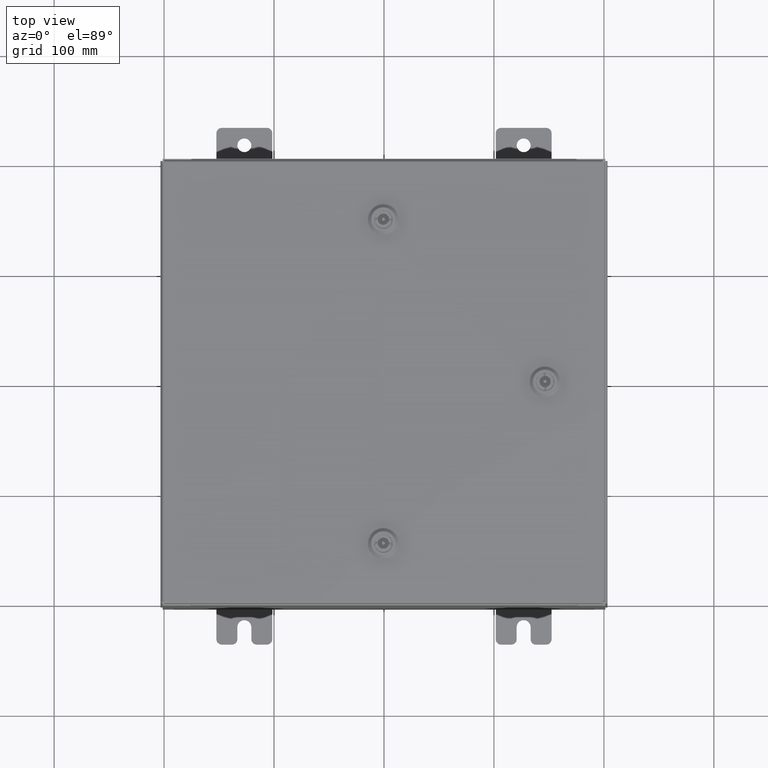
[diagram: clean part render]
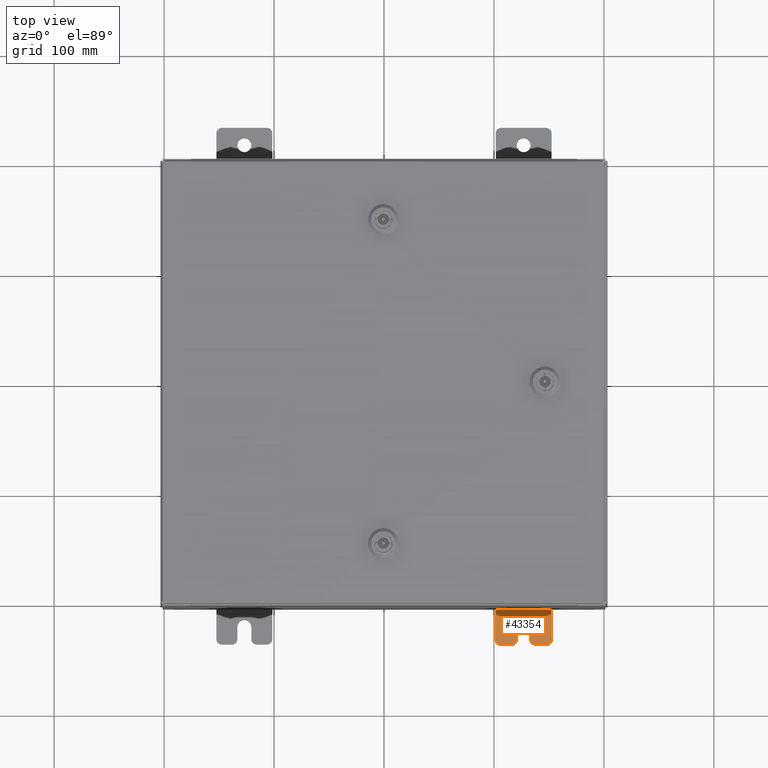
[diagram: same view with one face highlighted and labeled with its STEP entity id]
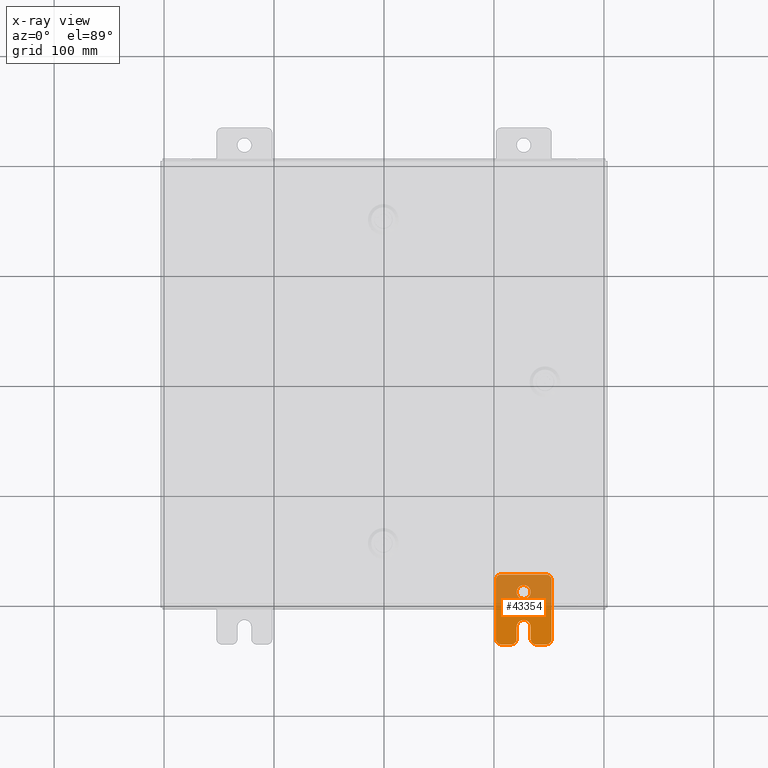
[diagram: x-ray of the same camera — body ghosted, the highlighted face saturated]
A machine part, top view. The second image highlights one B-rep face of the part: STEP entity #43354.
The next image is the same camera in x-ray: the body ghosted, the highlighted face saturated — about 50% of this face is hidden behind the body in this view.
In plain terms, the highlighted planar face has unit normal (0, 0, 1).
Its self-contained STEP definition (entity closure, byte-faithful):
#69 = AXIS2_PLACEMENT_3D ( 'NONE', #50986, #22064, #55833 ) ;
#488 = CARTESIAN_POINT ( 'NONE',  ( 0.0000000000000000000, 1.249999999999997300, 0.8099999999999935000 ) ) ;
#561 = VERTEX_POINT ( 'NONE', #43456 ) ;
#1962 = VECTOR ( 'NONE', #23746, 39.37007874015748100 ) ;
#2259 = VERTEX_POINT ( 'NONE', #15070 ) ;
#2380 = EDGE_CURVE ( 'NONE', #3396, #43586, #29416, .T. ) ;
#3319 = EDGE_CURVE ( 'NONE', #43951, #31294, #27841, .T. ) ;
#3396 = VERTEX_POINT ( 'NONE', #52796 ) ;
#4611 = CARTESIAN_POINT ( 'NONE',  ( 4.039428427013647300E-016, 0.6249999999999992200, -9.783840404509077400E-018 ) ) ;
#4751 = CARTESIAN_POINT ( 'NONE',  ( 0.0000000000000000000, -1.060000000000001600, 0.8099999999999978300 ) ) ;
#5589 = ORIENTED_EDGE ( 'NONE', *, *, #30302, .T. ) ;
#5919 = VERTEX_POINT ( 'NONE', #35141 ) ;
#6169 = CARTESIAN_POINT ( 'NONE',  ( 0.0000000000000000000, 1.059999999999993400, -1.000000000000010000 ) ) ;
#6552 = PLANE ( 'NONE',  #49453 ) ;
#6736 = CARTESIAN_POINT ( 'NONE',  ( 0.0000000000000000000, 1.249999999999994200, -1.000000000000010400 ) ) ;
#6760 = VERTEX_POINT ( 'NONE', #29267 ) ;
#7890 = ORIENTED_EDGE ( 'NONE', *, *, #54301, .T. ) ;
#9473 = DIRECTION ( 'NONE',  ( -5.163192708025533800E-017, 0.0000000000000000000, -1.000000000000000000 ) ) ;
#9565 = CIRCLE ( 'NONE', #24474, 0.1900000000000011100 ) ;
#9598 = DIRECTION ( 'NONE',  ( 0.0000000000000000000, 0.0000000000000000000, -1.000000000000000000 ) ) ;
#9755 = CIRCLE ( 'NONE', #50527, 0.2499999999999999200 ) ;
#10351 = VERTEX_POINT ( 'NONE', #56633 ) ;
#10383 = CIRCLE ( 'NONE', #69, 0.1900000000000011100 ) ;
#11316 = CARTESIAN_POINT ( 'NONE',  ( 0.0000000000000000000, -1.060000000000004100, -0.8100000000000050500 ) ) ;
#11966 = CARTESIAN_POINT ( 'NONE',  ( 4.039428427013647300E-016, 0.6249999999999992200, -9.783840404509077400E-018 ) ) ;
#12048 = DIRECTION ( 'NONE',  ( 1.000000000000000000, 0.0000000000000000000, -0.0000000000000000000 ) ) ;
#12201 = AXIS2_PLACEMENT_3D ( 'NONE', #11316, #45076, #16179 ) ;
#13020 = EDGE_CURVE ( 'NONE', #6760, #20109, #27171, .T. ) ;
#14214 = AXIS2_PLACEMENT_3D ( 'NONE', #40983, #12048, #45800 ) ;
#14227 = CARTESIAN_POINT ( 'NONE',  ( 0.0000000000000000000, -1.250000000000005600, -1.000000000000006200 ) ) ;
#14266 = CARTESIAN_POINT ( 'NONE',  ( 0.0000000000000000000, 1.059999999999996300, 0.8099999999999938400 ) ) ;
#14345 = VECTOR ( 'NONE', #16459, 39.37007874015748100 ) ;
#15070 = CARTESIAN_POINT ( 'NONE',  ( 0.0000000000000000000, -1.250000000000004700, -0.4400000000000002200 ) ) ;
#15416 = VERTEX_POINT ( 'NONE', #31999 ) ;
#15500 = CARTESIAN_POINT ( 'NONE',  ( 4.780733988912460100E-016, -0.6249999999999993300, 5.858939755051854500E-017 ) ) ;
#15955 = ORIENTED_EDGE ( 'NONE', *, *, #2380, .T. ) ;
#15958 = ORIENTED_EDGE ( 'NONE', *, *, #3319, .T. ) ;
#16151 = EDGE_CURVE ( 'NONE', #2259, #48536, #59451, .T. ) ;
#16179 = DIRECTION ( 'NONE',  ( 0.0000000000000000000, 0.0000000000000000000, -1.000000000000000000 ) ) ;
#16295 = CARTESIAN_POINT ( 'NONE',  ( 0.0000000000000000000, 1.249999999999997600, 0.9999999999999951200 ) ) ;
#16459 = DIRECTION ( 'NONE',  ( 0.0000000000000000000, 1.639108796198553600E-015, 1.000000000000000000 ) ) ;
#16808 = DIRECTION ( 'NONE',  ( -5.163192708025533800E-017, 0.0000000000000000000, -1.000000000000000000 ) ) ;
#17220 = EDGE_CURVE ( 'NONE', #31294, #3396, #9565, .T. ) ;
#17413 = EDGE_CURVE ( 'NONE', #48889, #20543, #27551, .T. ) ;
#17620 = EDGE_CURVE ( 'NONE', #56480, #5919, #47212, .T. ) ;
#17895 = CARTESIAN_POINT ( 'NONE',  ( 0.0000000000000000000, -1.250000000000003100, 0.4400000000000020000 ) ) ;
#19120 = DIRECTION ( 'NONE',  ( 0.0000000000000000000, 0.0000000000000000000, -1.000000000000000000 ) ) ;
#19609 = ORIENTED_EDGE ( 'NONE', *, *, #42058, .T. ) ;
#20109 = VERTEX_POINT ( 'NONE', #488 ) ;
#20297 = FACE_BOUND ( 'NONE', #34726, .T. ) ;
#20330 = DIRECTION ( 'NONE',  ( -6.523827964459551700E-016, -1.000000000000000000, 0.0000000000000000000 ) ) ;
#20543 = VERTEX_POINT ( 'NONE', #52087 ) ;
#21096 = DIRECTION ( 'NONE',  ( -0.0000000000000000000, 0.0000000000000000000, -1.000000000000000000 ) ) ;
#22064 = DIRECTION ( 'NONE',  ( 1.000000000000000000, 0.0000000000000000000, -0.0000000000000000000 ) ) ;
#22166 = DIRECTION ( 'NONE',  ( 0.0000000000000000000, -1.639108796198553600E-015, -1.000000000000000000 ) ) ;
#22995 = ORIENTED_EDGE ( 'NONE', *, *, #55774, .T. ) ;
#23680 = DIRECTION ( 'NONE',  ( 0.0000000000000000000, -1.000000000000000000, 1.639108796198558100E-015 ) ) ;
#23746 = DIRECTION ( 'NONE',  ( 6.556435184794182400E-016, 1.000000000000000000, 0.0000000000000000000 ) ) ;
#24474 = AXIS2_PLACEMENT_3D ( 'NONE', #4751, #38530, #9598 ) ;
#25331 = VERTEX_POINT ( 'NONE', #6169 ) ;
#26045 = CARTESIAN_POINT ( 'NONE',  ( 0.0000000000000000000, -1.060000000000002100, 0.4400000000000016700 ) ) ;
#26351 = VECTOR ( 'NONE', #23680, 39.37007874015748100 ) ;
#27171 = LINE ( 'NONE', #6736, #14345 ) ;
#27551 = CIRCLE ( 'NONE', #40734, 0.2499999999999999200 ) ;
#27578 = CARTESIAN_POINT ( 'NONE',  ( 0.0000000000000000000, -1.060000000000001200, 0.9999999999999988900 ) ) ;
#27599 = ORIENTED_EDGE ( 'NONE', *, *, #17220, .T. ) ;
#27841 = LINE ( 'NONE', #16295, #26351 ) ;
#29267 = CARTESIAN_POINT ( 'NONE',  ( 0.0000000000000000000, 1.249999999999994700, -0.8100000000000092700 ) ) ;
#29416 = LINE ( 'NONE', #50499, #52079 ) ;
#29608 = DIRECTION ( 'NONE',  ( -6.556435184794182400E-016, -1.000000000000000000, -1.639108796198545600E-016 ) ) ;
#30148 = AXIS2_PLACEMENT_3D ( 'NONE', #14266, #48039, #19120 ) ;
#30190 = ORIENTED_EDGE ( 'NONE', *, *, #16151, .T. ) ;
#30302 = EDGE_CURVE ( 'NONE', #43586, #15416, #57847, .T. ) ;
#30380 = ORIENTED_EDGE ( 'NONE', *, *, #54853, .T. ) ;
#30879 = DIRECTION ( 'NONE',  ( 0.0000000000000000000, 0.0000000000000000000, -1.000000000000000000 ) ) ;
#31294 = VERTEX_POINT ( 'NONE', #27578 ) ;
#31596 = EDGE_CURVE ( 'NONE', #15416, #561, #51745, .T. ) ;
#31999 = CARTESIAN_POINT ( 'NONE',  ( 1.928684683526972300E-016, -1.060000000000002100, 0.2500000000000005000 ) ) ;
#33111 = FACE_OUTER_BOUND ( 'NONE', #41299, .T. ) ;
#33370 = ORIENTED_EDGE ( 'NONE', *, *, #53158, .F. ) ;
#33406 = CIRCLE ( 'NONE', #30148, 0.1900000000000011100 ) ;
#34688 = CARTESIAN_POINT ( 'NONE',  ( 4.780733988912460100E-016, -0.6249999999999993300, -0.2499999999999993900 ) ) ;
#34726 = EDGE_LOOP ( 'NONE', ( #35047, #33370 ) ) ;
#35047 = ORIENTED_EDGE ( 'NONE', *, *, #17413, .F. ) ;
#35141 = CARTESIAN_POINT ( 'NONE',  ( 1.928684683526964400E-016, -1.060000000000003400, -0.2499999999999994400 ) ) ;
#35307 = VECTOR ( 'NONE', #22166, 39.37007874015748100 ) ;
#35404 = ORIENTED_EDGE ( 'NONE', *, *, #46981, .T. ) ;
#35455 = CARTESIAN_POINT ( 'NONE',  ( 0.0000000000000000000, 0.0000000000000000000, 0.0000000000000000000 ) ) ;
#36739 = CARTESIAN_POINT ( 'NONE',  ( 0.0000000000000000000, -1.250000000000002200, 0.9999999999999992200 ) ) ;
#36788 = CARTESIAN_POINT ( 'NONE',  ( 0.0000000000000000000, 1.059999999999996500, 0.9999999999999953400 ) ) ;
#36856 = EDGE_CURVE ( 'NONE', #20109, #43951, #33406, .T. ) ;
#38413 = DIRECTION ( 'NONE',  ( 1.000000000000000000, -0.0000000000000000000, -5.163192708025532000E-017 ) ) ;
#38530 = DIRECTION ( 'NONE',  ( 1.000000000000000000, 0.0000000000000000000, -0.0000000000000000000 ) ) ;
#40708 = CIRCLE ( 'NONE', #50177, 0.2499999999999999200 ) ;
#40734 = AXIS2_PLACEMENT_3D ( 'NONE', #4611, #38413, #9473 ) ;
#40983 = CARTESIAN_POINT ( 'NONE',  ( 0.0000000000000000000, 1.059999999999993600, -0.8100000000000089400 ) ) ;
#41299 = EDGE_LOOP ( 'NONE', ( #15958, #27599, #15955, #5589, #60680, #7890, #56713, #22995, #30190, #30380, #35404, #19609, #57966, #57517 ) ) ;
#41443 = CIRCLE ( 'NONE', #12201, 0.1900000000000011100 ) ;
#41595 = CARTESIAN_POINT ( 'NONE',  ( 0.0000000000000000000, -1.250000000000005300, -0.8100000000000047200 ) ) ;
#42058 = EDGE_CURVE ( 'NONE', #25331, #6760, #42309, .T. ) ;
#42309 = CIRCLE ( 'NONE', #14214, 0.1900000000000011100 ) ;
#43354 = ADVANCED_FACE ( 'NONE', ( #20297, #33111 ), #6552, .T. ) ;
#43456 = CARTESIAN_POINT ( 'NONE',  ( 0.0000000000000000000, -0.6249999999999992200, 0.2500000000000005000 ) ) ;
#43586 = VERTEX_POINT ( 'NONE', #17895 ) ;
#43951 = VERTEX_POINT ( 'NONE', #36788 ) ;
#43963 = CARTESIAN_POINT ( 'NONE',  ( 3.910348609313009100E-016, 0.6249999999999992200, -0.2499999999999999200 ) ) ;
#45076 = DIRECTION ( 'NONE',  ( 1.000000000000000000, 0.0000000000000000000, -0.0000000000000000000 ) ) ;
#45642 = DIRECTION ( 'NONE',  ( 0.0000000000000000000, -1.639108796198553600E-015, -1.000000000000000000 ) ) ;
#45723 = DIRECTION ( 'NONE',  ( 1.000000000000000000, -0.0000000000000000000, -5.163192708025532000E-017 ) ) ;
#45800 = DIRECTION ( 'NONE',  ( 0.0000000000000000000, 0.0000000000000000000, -1.000000000000000000 ) ) ;
#46981 = EDGE_CURVE ( 'NONE', #10351, #25331, #55383, .T. ) ;
#47212 = LINE ( 'NONE', #34688, #60043 ) ;
#47313 = CARTESIAN_POINT ( 'NONE',  ( 4.780733988912460100E-016, -0.6249999999999993300, -0.2499999999999998600 ) ) ;
#47839 = CARTESIAN_POINT ( 'NONE',  ( 6.829619984160658000E-017, -1.250000000000003800, 0.2500000000000005000 ) ) ;
#48039 = DIRECTION ( 'NONE',  ( 1.000000000000000000, 0.0000000000000000000, -0.0000000000000000000 ) ) ;
#48536 = VERTEX_POINT ( 'NONE', #41595 ) ;
#48889 = VERTEX_POINT ( 'NONE', #43963 ) ;
#49255 = DIRECTION ( 'NONE',  ( -1.000000000000000000, 6.523827964459549700E-016, 5.163192708025532000E-017 ) ) ;
#49453 = AXIS2_PLACEMENT_3D ( 'NONE', #35455, #50023, #21096 ) ;
#50023 = DIRECTION ( 'NONE',  ( 1.000000000000000000, 0.0000000000000000000, -0.0000000000000000000 ) ) ;
#50177 = AXIS2_PLACEMENT_3D ( 'NONE', #15500, #49255, #20330 ) ;
#50499 = CARTESIAN_POINT ( 'NONE',  ( 0.0000000000000000000, -1.250000000000002200, 0.9999999999999992200 ) ) ;
#50527 = AXIS2_PLACEMENT_3D ( 'NONE', #11966, #45723, #16808 ) ;
#50621 = AXIS2_PLACEMENT_3D ( 'NONE', #26045, #59831, #30879 ) ;
#50986 = CARTESIAN_POINT ( 'NONE',  ( 0.0000000000000000000, -1.060000000000003400, -0.4400000000000005000 ) ) ;
#51745 = LINE ( 'NONE', #47839, #1962 ) ;
#52079 = VECTOR ( 'NONE', #45642, 39.37007874015748100 ) ;
#52087 = CARTESIAN_POINT ( 'NONE',  ( 4.168508244714285900E-016, 0.6249999999999992200, 0.2499999999999999200 ) ) ;
#52796 = CARTESIAN_POINT ( 'NONE',  ( 0.0000000000000000000, -1.250000000000002400, 0.8099999999999980500 ) ) ;
#52825 = DIRECTION ( 'NONE',  ( 0.0000000000000000000, 1.000000000000000000, -1.639108796198558100E-015 ) ) ;
#53158 = EDGE_CURVE ( 'NONE', #20543, #48889, #9755, .T. ) ;
#53843 = VECTOR ( 'NONE', #52825, 39.37007874015748100 ) ;
#54301 = EDGE_CURVE ( 'NONE', #561, #56480, #40708, .T. ) ;
#54853 = EDGE_CURVE ( 'NONE', #48536, #10351, #41443, .T. ) ;
#55383 = LINE ( 'NONE', #14227, #53843 ) ;
#55774 = EDGE_CURVE ( 'NONE', #5919, #2259, #10383, .T. ) ;
#55833 = DIRECTION ( 'NONE',  ( 0.0000000000000000000, 0.0000000000000000000, -1.000000000000000000 ) ) ;
#56480 = VERTEX_POINT ( 'NONE', #47313 ) ;
#56633 = CARTESIAN_POINT ( 'NONE',  ( 0.0000000000000000000, -1.060000000000004500, -1.000000000000006400 ) ) ;
#56713 = ORIENTED_EDGE ( 'NONE', *, *, #17620, .T. ) ;
#57517 = ORIENTED_EDGE ( 'NONE', *, *, #36856, .T. ) ;
#57847 = CIRCLE ( 'NONE', #50621, 0.1900000000000011400 ) ;
#57966 = ORIENTED_EDGE ( 'NONE', *, *, #13020, .T. ) ;
#59451 = LINE ( 'NONE', #36739, #35307 ) ;
#59831 = DIRECTION ( 'NONE',  ( 1.000000000000000000, 0.0000000000000000000, -0.0000000000000000000 ) ) ;
#60043 = VECTOR ( 'NONE', #29608, 39.37007874015748100 ) ;
#60680 = ORIENTED_EDGE ( 'NONE', *, *, #31596, .T. ) ;